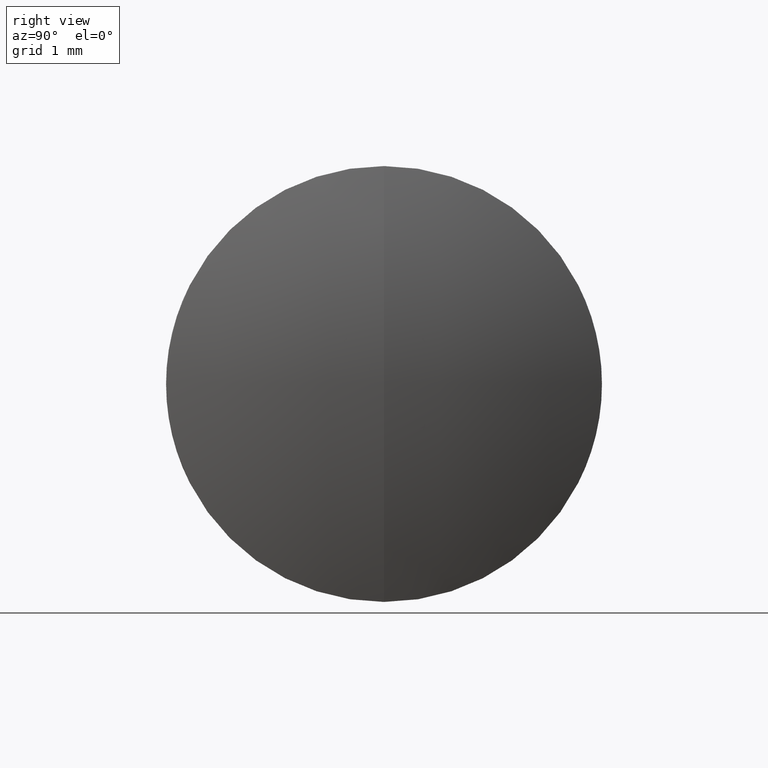
[diagram: clean part render]
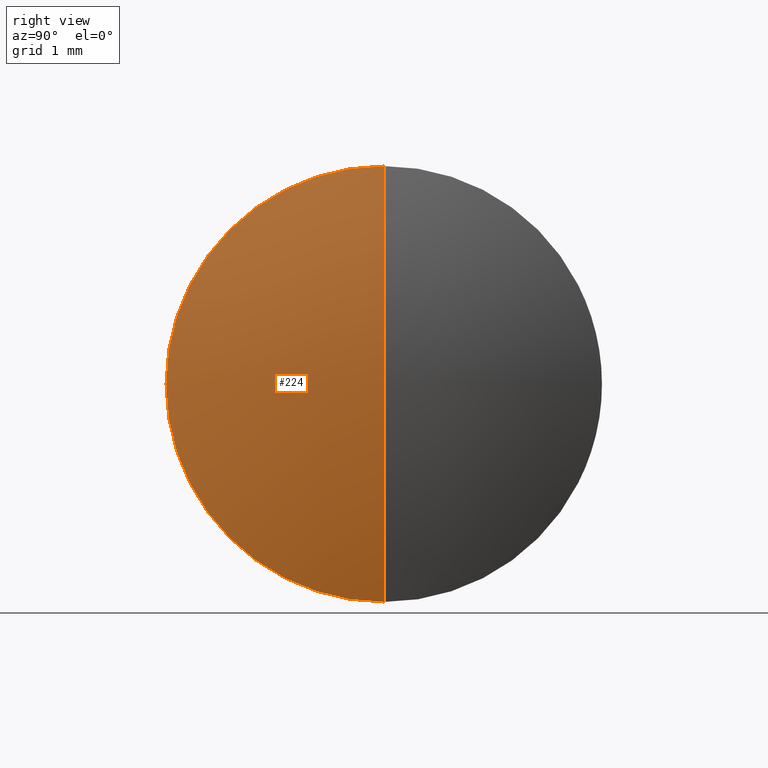
[diagram: same view with one face highlighted and labeled with its STEP entity id]
A machine part, right view. The second image highlights one B-rep face of the part: STEP entity #224.
In plain terms, the highlighted spherical surface has radius 10.1 mm.
Its self-contained STEP definition (entity closure, byte-faithful):
#3 = VERTEX_POINT ( 'NONE', #38 ) ;
#7 = AXIS2_PLACEMENT_3D ( 'NONE', #344, #178, #16 ) ;
#16 = DIRECTION ( 'NONE',  ( 0.0000000000000000000, 0.0000000000000000000, 1.000000000000000000 ) ) ;
#18 = DIRECTION ( 'NONE',  ( -0.0000000000000000000, 1.000000000000000000, 1.224646799147353200E-016 ) ) ;
#38 = CARTESIAN_POINT ( 'NONE',  ( 7.490604339932700000, 0.0000000000000000000, 6.184466335694133100E-016 ) ) ;
#44 = AXIS2_PLACEMENT_3D ( 'NONE', #251, #83, #302 ) ;
#67 = ORIENTED_EDGE ( 'NONE', *, *, #124, .F. ) ;
#83 = DIRECTION ( 'NONE',  ( 0.0000000000000000000, 1.000000000000000000, 0.0000000000000000000 ) ) ;
#85 = CARTESIAN_POINT ( 'NONE',  ( 6.986827555344063100, 3.857637417314162200E-016, -3.149999999999999500 ) ) ;
#92 = EDGE_CURVE ( 'NONE', #296, #145, #303, .T. ) ;
#124 = EDGE_CURVE ( 'NONE', #3, #296, #330, .T. ) ;
#135 = EDGE_LOOP ( 'NONE', ( #67, #230, #187 ) ) ;
#143 = EDGE_CURVE ( 'NONE', #3, #145, #221, .T. ) ;
#145 = VERTEX_POINT ( 'NONE', #297 ) ;
#157 = DIRECTION ( 'NONE',  ( 0.0000000000000000000, -1.000000000000000000, 0.0000000000000000000 ) ) ;
#178 = DIRECTION ( 'NONE',  ( -1.000000000000000000, -0.0000000000000000000, -0.0000000000000000000 ) ) ;
#179 = CARTESIAN_POINT ( 'NONE',  ( -2.609395660067300100, 0.0000000000000000000, 0.0000000000000000000 ) ) ;
#187 = ORIENTED_EDGE ( 'NONE', *, *, #92, .F. ) ;
#206 = DIRECTION ( 'NONE',  ( 0.0000000000000000000, -1.224646799147353200E-016, 1.000000000000000000 ) ) ;
#221 = CIRCLE ( 'NONE', #308, 10.10000000000000000 ) ;
#224 = ADVANCED_FACE ( 'NONE', ( #343 ), #267, .T. ) ;
#230 = ORIENTED_EDGE ( 'NONE', *, *, #143, .T. ) ;
#251 = CARTESIAN_POINT ( 'NONE',  ( -2.609395660067300100, 0.0000000000000000000, 0.0000000000000000000 ) ) ;
#267 = SPHERICAL_SURFACE ( 'NONE', #44, 10.10000000000000000 ) ;
#271 = AXIS2_PLACEMENT_3D ( 'NONE', #179, #18, #206 ) ;
#296 = VERTEX_POINT ( 'NONE', #85 ) ;
#297 = CARTESIAN_POINT ( 'NONE',  ( 6.986827555344063100, 0.0000000000000000000, 3.149999999999999500 ) ) ;
#302 = DIRECTION ( 'NONE',  ( 0.0000000000000000000, 0.0000000000000000000, 1.000000000000000000 ) ) ;
#303 = CIRCLE ( 'NONE', #7, 3.149999999999999500 ) ;
#308 = AXIS2_PLACEMENT_3D ( 'NONE', #323, #157, #346 ) ;
#323 = CARTESIAN_POINT ( 'NONE',  ( -2.609395660067300100, 0.0000000000000000000, 0.0000000000000000000 ) ) ;
#330 = CIRCLE ( 'NONE', #271, 10.10000000000000000 ) ;
#343 = FACE_OUTER_BOUND ( 'NONE', #135, .T. ) ;
#344 = CARTESIAN_POINT ( 'NONE',  ( 6.986827555344063100, 0.0000000000000000000, 0.0000000000000000000 ) ) ;
#346 = DIRECTION ( 'NONE',  ( 0.0000000000000000000, 0.0000000000000000000, -1.000000000000000000 ) ) ;